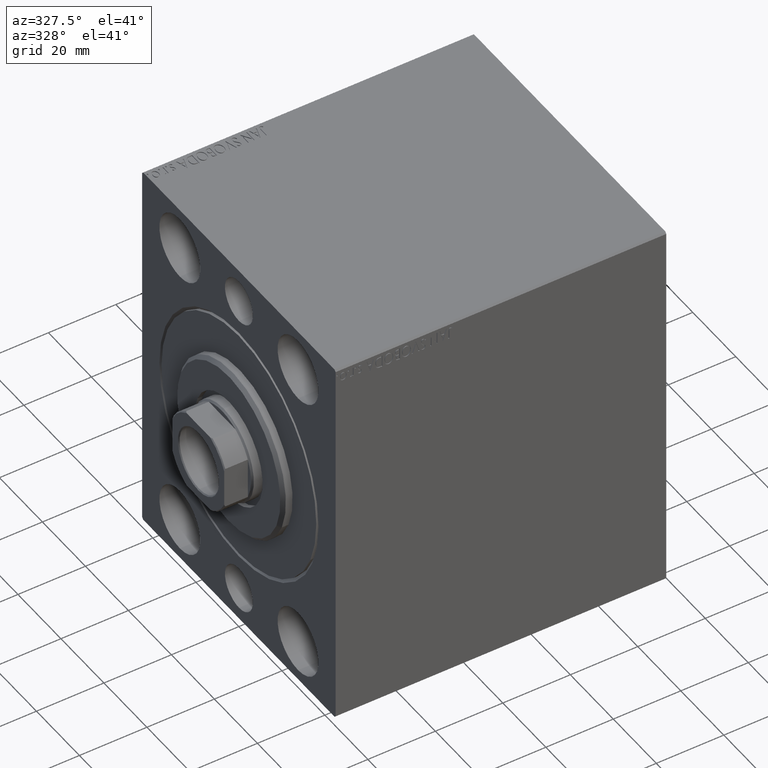
[diagram: clean part render]
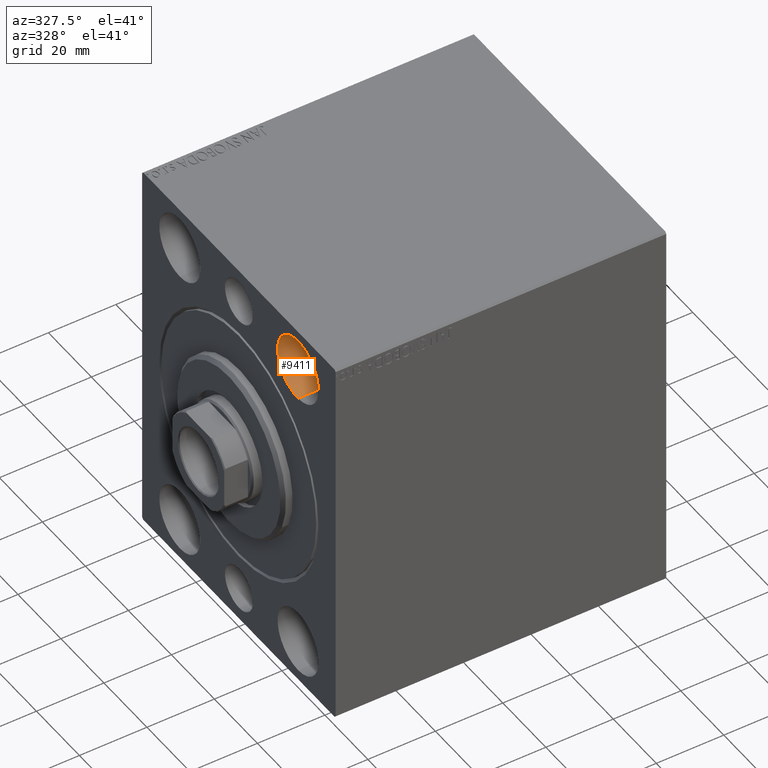
[diagram: same view with one face highlighted and labeled with its STEP entity id]
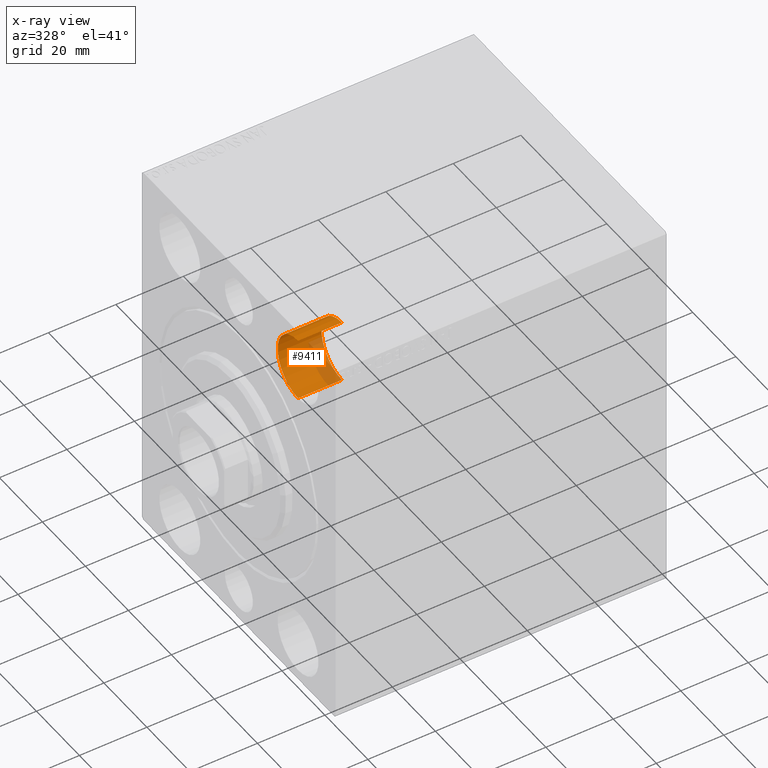
[diagram: x-ray of the same camera — body ghosted, the highlighted face saturated]
A machine part, auxiliary view. The second image highlights one B-rep face of the part: STEP entity #9411.
The next image is the same camera in x-ray: the body ghosted, the highlighted face saturated — about 22% of this face is hidden behind the body in this view.
In plain terms, the highlighted cylindrical surface (partial cylindrical patch) has radius 9.5 mm, axis along (-1, -0, -0).
Its self-contained STEP definition (entity closure, byte-faithful):
#1815 = CIRCLE ( 'NONE', #26592, 9.500000000000001776 ) ;
#2967 = CARTESIAN_POINT ( 'NONE',  ( 0.000000000000000000, -27.49999999999998934, 54.50000000000000711 ) ) ;
#4344 = LINE ( 'NONE', #14764, #32326 ) ;
#4471 = AXIS2_PLACEMENT_3D ( 'NONE', #33469, #40318, #9553 ) ;
#4489 = CARTESIAN_POINT ( 'NONE',  ( 0.000000000000000000, -27.49999999999998934, 35.50000000000000711 ) ) ;
#4762 = CARTESIAN_POINT ( 'NONE',  ( 13.00000000000000000, -27.49999999999998934, 45.00000000000000711 ) ) ;
#7477 = VERTEX_POINT ( 'NONE', #4489 ) ;
#9411 = ADVANCED_FACE ( 'NONE', ( #23492 ), #26816, .F. ) ;
#9553 = DIRECTION ( 'NONE',  ( 0.000000000000000000, 0.000000000000000000, 1.000000000000000000 ) ) ;
#10116 = VERTEX_POINT ( 'NONE', #34808 ) ;
#11431 = DIRECTION ( 'NONE',  ( -1.000000000000000000, -0.000000000000000000, -0.000000000000000000 ) ) ;
#11548 = LINE ( 'NONE', #25052, #23185 ) ;
#13645 = CARTESIAN_POINT ( 'NONE',  ( 0.000000000000000000, -27.49999999999998934, 45.00000000000000711 ) ) ;
#14301 = DIRECTION ( 'NONE',  ( -1.000000000000000000, 0.000000000000000000, 0.000000000000000000 ) ) ;
#14586 = EDGE_CURVE ( 'NONE', #41469, #7477, #36372, .T. ) ;
#14764 = CARTESIAN_POINT ( 'NONE',  ( 13.00000000000000000, -27.49999999999998934, 35.50000000000000711 ) ) ;
#16129 = ORIENTED_EDGE ( 'NONE', *, *, #21189, .F. ) ;
#16399 = ORIENTED_EDGE ( 'NONE', *, *, #14586, .T. ) ;
#21189 = EDGE_CURVE ( 'NONE', #22161, #10116, #1815, .T. ) ;
#22161 = VERTEX_POINT ( 'NONE', #32218 ) ;
#23185 = VECTOR ( 'NONE', #35923, 1000.000000000000000 ) ;
#23492 = FACE_OUTER_BOUND ( 'NONE', #27327, .T. ) ;
#24265 = DIRECTION ( 'NONE',  ( 0.000000000000000000, 0.000000000000000000, 1.000000000000000000 ) ) ;
#25027 = AXIS2_PLACEMENT_3D ( 'NONE', #13645, #30049, #27150 ) ;
#25052 = CARTESIAN_POINT ( 'NONE',  ( 13.00000000000000000, -27.49999999999998934, 54.50000000000000711 ) ) ;
#26209 = EDGE_CURVE ( 'NONE', #22161, #41469, #11548, .T. ) ;
#26592 = AXIS2_PLACEMENT_3D ( 'NONE', #4762, #14301, #24265 ) ;
#26816 = CYLINDRICAL_SURFACE ( 'NONE', #4471, 9.500000000000001776 ) ;
#27150 = DIRECTION ( 'NONE',  ( 0.000000000000000000, 0.000000000000000000, 1.000000000000000000 ) ) ;
#27327 = EDGE_LOOP ( 'NONE', ( #32853, #16129, #35795, #16399 ) ) ;
#30049 = DIRECTION ( 'NONE',  ( -1.000000000000000000, 0.000000000000000000, 0.000000000000000000 ) ) ;
#32218 = CARTESIAN_POINT ( 'NONE',  ( 13.00000000000000000, -27.49999999999998934, 54.50000000000000711 ) ) ;
#32326 = VECTOR ( 'NONE', #11431, 1000.000000000000000 ) ;
#32853 = ORIENTED_EDGE ( 'NONE', *, *, #36467, .F. ) ;
#33469 = CARTESIAN_POINT ( 'NONE',  ( 13.00000000000000000, -27.49999999999998934, 45.00000000000000711 ) ) ;
#34808 = CARTESIAN_POINT ( 'NONE',  ( 13.00000000000000000, -27.49999999999998934, 35.50000000000000711 ) ) ;
#35795 = ORIENTED_EDGE ( 'NONE', *, *, #26209, .T. ) ;
#35923 = DIRECTION ( 'NONE',  ( -1.000000000000000000, -0.000000000000000000, -0.000000000000000000 ) ) ;
#36372 = CIRCLE ( 'NONE', #25027, 9.500000000000001776 ) ;
#36467 = EDGE_CURVE ( 'NONE', #10116, #7477, #4344, .T. ) ;
#40318 = DIRECTION ( 'NONE',  ( -1.000000000000000000, -0.000000000000000000, -0.000000000000000000 ) ) ;
#41469 = VERTEX_POINT ( 'NONE', #2967 ) ;